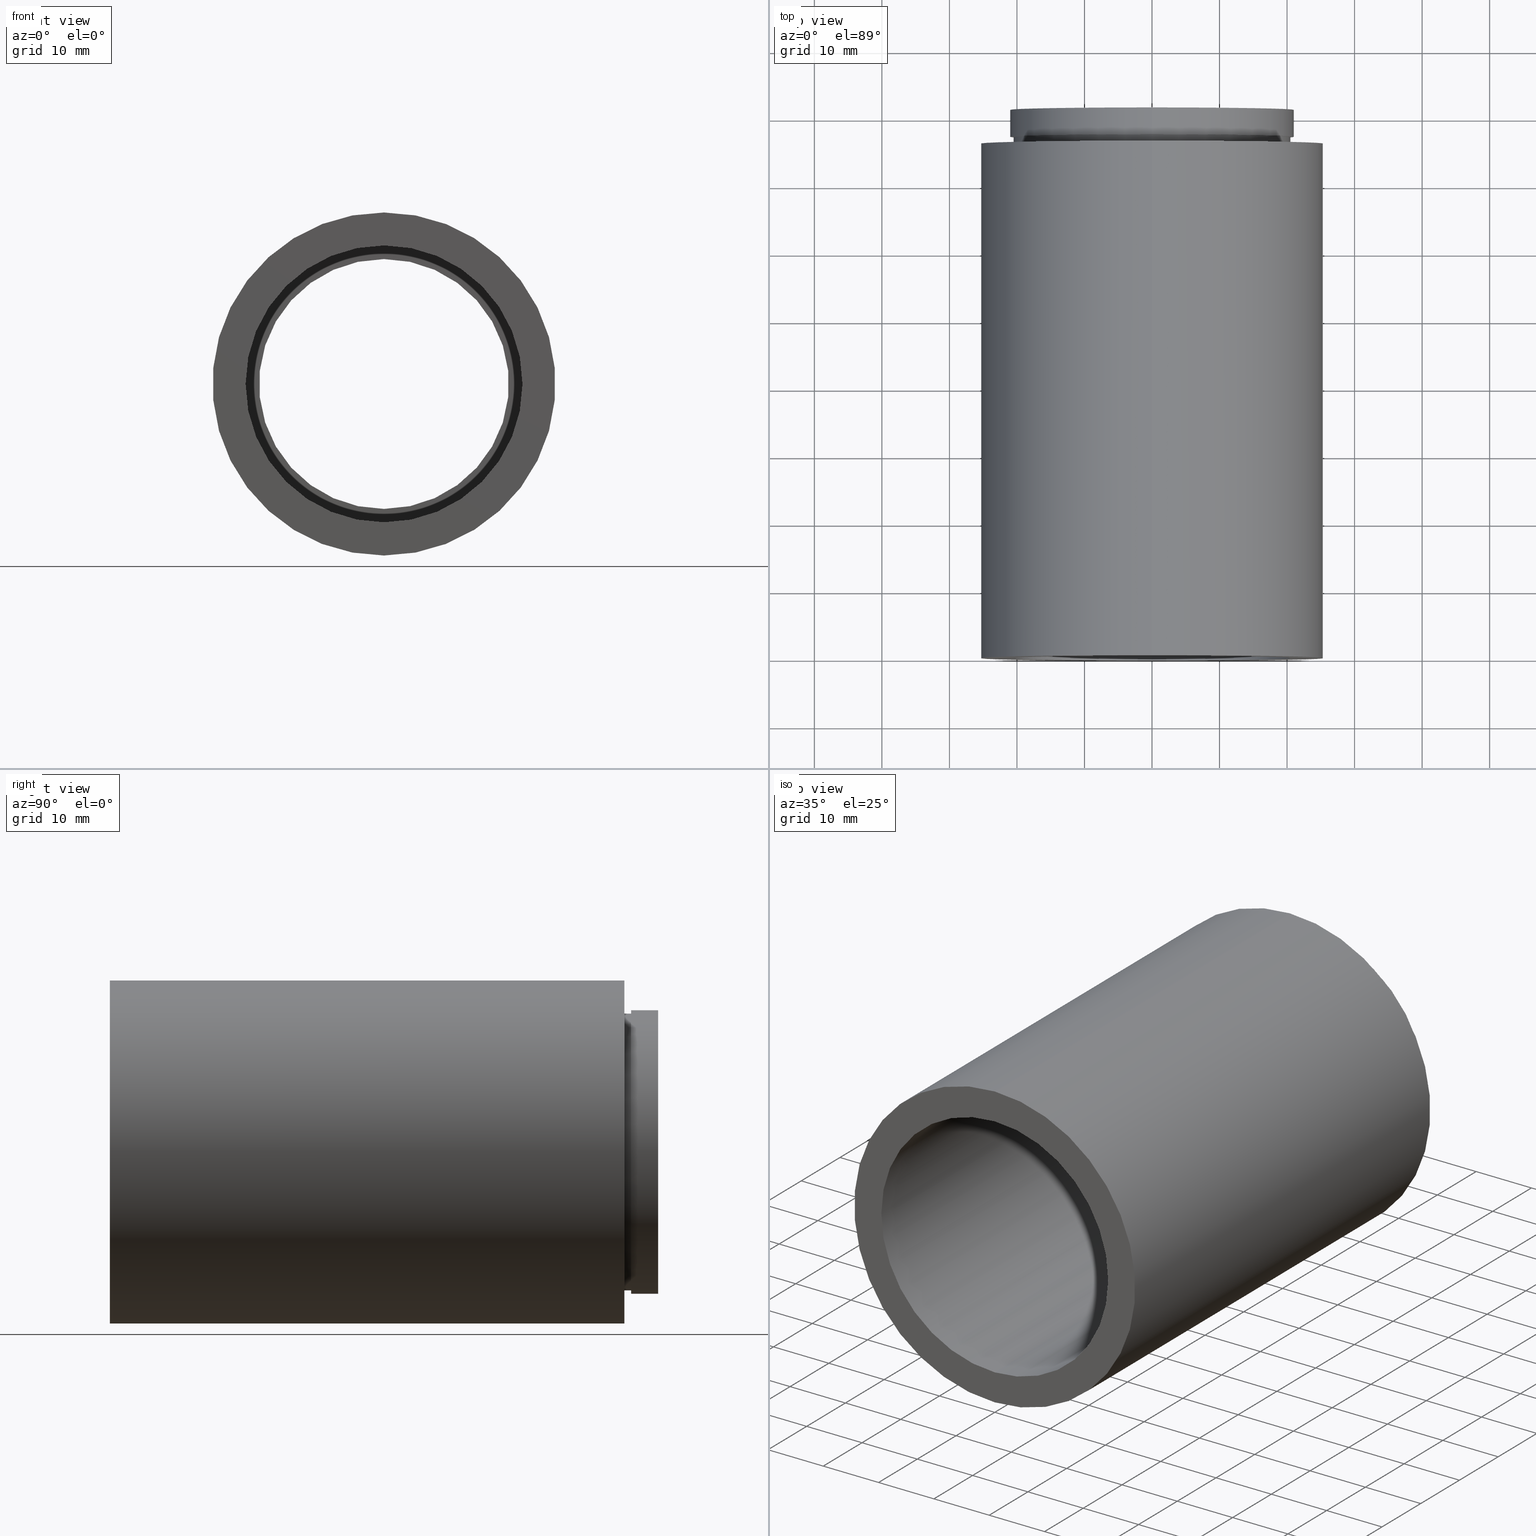
[diagram: canonical four-view strip — front | top / right | iso, engineering-drawing reading convention]
A machine part, canonical four-view strip (front | top / right | iso — engineering-drawing reading convention). The complete STEP part file that produces these views, byte-faithful:
ISO-10303-21;
HEADER;
FILE_DESCRIPTION (( 'STEP AP214' ),
    '1' );
FILE_NAME ('503022.STEP',
    '2019-09-05T03:04:28',
    ( '' ),
    ( '' ),
    'SwSTEP 2.0',
    'SolidWorks 2016',
    '' );
FILE_SCHEMA (( 'AUTOMOTIVE_DESIGN' ));
ENDSEC;

DATA;
#1 = VERTEX_POINT ( 'NONE', #105 ) ;
#2 = ORIENTED_EDGE ( 'NONE', *, *, #547, .F. ) ;
#3 = ADVANCED_BREP_SHAPE_REPRESENTATION ( '503022', ( #344, #295 ), #592 ) ;
#4 = ORIENTED_EDGE ( 'NONE', *, *, #447, .F. ) ;
#5 = ORIENTED_EDGE ( 'NONE', *, *, #209, .T. ) ;
#6 = AXIS2_PLACEMENT_3D ( 'NONE', #505, #557, #267 ) ;
#7 = FACE_BOUND ( 'NONE', #584, .T. ) ;
#8 = MECHANICAL_DESIGN_GEOMETRIC_PRESENTATION_REPRESENTATION (  '', ( #143 ), #50 ) ;
#9 = AXIS2_PLACEMENT_3D ( 'NONE', #226, #22, #221 ) ;
#10 = ORIENTED_EDGE ( 'NONE', *, *, #238, .F. ) ;
#11 = UNCERTAINTY_MEASURE_WITH_UNIT (LENGTH_MEASURE( 1.000000000000000100E-005 ), #282, 'distance_accuracy_value', 'NONE');
#12 = FACE_OUTER_BOUND ( 'NONE', #284, .T. ) ;
#13 = ORIENTED_EDGE ( 'NONE', *, *, #481, .F. ) ;
#14 = CIRCLE ( 'NONE', #539, 21.10000000000001200 ) ;
#15 = CARTESIAN_POINT ( 'NONE',  ( 2.571758278209443200E-015, 161.3761669434274500, -21.00000000000001100 ) ) ;
#16 = EDGE_CURVE ( 'NONE', #79, #46, #527, .T. ) ;
#17 = PLANE ( 'NONE',  #179 ) ;
#18 = CARTESIAN_POINT ( 'NONE',  ( 0.0000000000000000000, 81.19999999999998900, 18.50000000000001100 ) ) ;
#19 = EDGE_LOOP ( 'NONE', ( #20, #419 ) ) ;
#20 = ORIENTED_EDGE ( 'NONE', *, *, #27, .T. ) ;
#21 = CYLINDRICAL_SURFACE ( 'NONE', #337, 21.10000000000001200 ) ;
#22 = DIRECTION ( 'NONE',  ( -0.0000000000000000000, 1.000000000000000000, -0.0000000000000000000 ) ) ;
#23 = UNCERTAINTY_MEASURE_WITH_UNIT (LENGTH_MEASURE( 1.000000000000000100E-005 ), #340, 'distance_accuracy_value', 'NONE');
#24 = FILL_AREA_STYLE ('',( #175 ) ) ;
#25 = ORIENTED_EDGE ( 'NONE', *, *, #150, .F. ) ;
#26 = EDGE_LOOP ( 'NONE', ( #166, #309, #96, #129 ) ) ;
#27 = EDGE_CURVE ( 'NONE', #600, #294, #389, .T. ) ;
#28 = CARTESIAN_POINT ( 'NONE',  ( 0.0000000000000000000, 74.19999999999998900, 0.0000000000000000000 ) ) ;
#29 = PRESENTATION_STYLE_ASSIGNMENT (( #565 ) ) ;
#30 =( LENGTH_UNIT ( ) NAMED_UNIT ( * ) SI_UNIT ( .MILLI., .METRE. ) );
#31 = AXIS2_PLACEMENT_3D ( 'NONE', #210, #162, #255 ) ;
#32 = CARTESIAN_POINT ( 'NONE',  ( 2.571758278209443200E-015, 81.19999999999998900, -21.00000000000001100 ) ) ;
#33 = DIRECTION ( 'NONE',  ( 0.0000000000000000000, -0.0000000000000000000, -1.000000000000000000 ) ) ;
#34 = ADVANCED_FACE ( 'NONE', ( #619, #385 ), #433, .F. ) ;
#35 = AXIS2_PLACEMENT_3D ( 'NONE', #142, #365, #369 ) ;
#36 = ORIENTED_EDGE ( 'NONE', *, *, #199, .F. ) ;
#37 = PRESENTATION_LAYER_ASSIGNMENT (  '', '', ( #432 ) ) ;
#38 = VERTEX_POINT ( 'NONE', #540 ) ;
#39 = SURFACE_SIDE_STYLE ('',( #56 ) ) ;
#40 = CYLINDRICAL_SURFACE ( 'NONE', #502, 25.40000000000001300 ) ;
#41 = CYLINDRICAL_SURFACE ( 'NONE', #113, 18.50000000000001100 ) ;
#42 = DIRECTION ( 'NONE',  ( -0.0000000000000000000, 1.000000000000000000, -0.0000000000000000000 ) ) ;
#43 = DIRECTION ( 'NONE',  ( -0.0000000000000000000, 1.000000000000000000, -0.0000000000000000000 ) ) ;
#44 = EDGE_CURVE ( 'NONE', #489, #121, #156, .T. ) ;
#45 = CARTESIAN_POINT ( 'NONE',  ( 3.110602869834278400E-015, 161.3761669434274500, -25.40000000000001300 ) ) ;
#46 = VERTEX_POINT ( 'NONE', #346 ) ;
#47 = AXIS2_PLACEMENT_3D ( 'NONE', #438, #300, #207 ) ;
#48 = CYLINDRICAL_SURFACE ( 'NONE', #47, 21.10000000000001200 ) ;
#49 = FACE_OUTER_BOUND ( 'NONE', #19, .T. ) ;
#50 =( GEOMETRIC_REPRESENTATION_CONTEXT ( 3 ) GLOBAL_UNCERTAINTY_ASSIGNED_CONTEXT ( ( #11 ) ) GLOBAL_UNIT_ASSIGNED_CONTEXT ( ( #282, #454, #457 ) ) REPRESENTATION_CONTEXT ( 'NONE', 'WORKASPACE' ) );
#51 = DIRECTION ( 'NONE',  ( 0.0000000000000000000, 0.0000000000000000000, 1.000000000000000000 ) ) ;
#52 = ORIENTED_EDGE ( 'NONE', *, *, #185, .T. ) ;
#53 = ORIENTED_EDGE ( 'NONE', *, *, #374, .T. ) ;
#54 = LINE ( 'NONE', #317, #469 ) ;
#55 = PRESENTATION_STYLE_ASSIGNMENT (( #269 ) ) ;
#56 = SURFACE_STYLE_FILL_AREA ( #287 ) ;
#57 = CARTESIAN_POINT ( 'NONE',  ( 2.265596578422604600E-015, 81.19999999999998900, -18.50000000000001100 ) ) ;
#58 = CARTESIAN_POINT ( 'NONE',  ( 0.0000000000000000000, 77.19999999999998900, 0.0000000000000000000 ) ) ;
#59 = AXIS2_PLACEMENT_3D ( 'NONE', #354, #356, #453 ) ;
#60 = VERTEX_POINT ( 'NONE', #57 ) ;
#61 =( GEOMETRIC_REPRESENTATION_CONTEXT ( 3 ) GLOBAL_UNCERTAINTY_ASSIGNED_CONTEXT ( ( #477 ) ) GLOBAL_UNIT_ASSIGNED_CONTEXT ( ( #192, #141, #478 ) ) REPRESENTATION_CONTEXT ( 'NONE', 'WORKASPACE' ) );
#62 = ORIENTED_EDGE ( 'NONE', *, *, #523, .F. ) ;
#63 = CIRCLE ( 'NONE', #590, 18.50000000000001100 ) ;
#64 = EDGE_CURVE ( 'NONE', #121, #489, #109, .T. ) ;
#65 = CARTESIAN_POINT ( 'NONE',  ( 0.0000000000000000000, 77.19999999999998900, 21.00000000000001100 ) ) ;
#66 = DIRECTION ( 'NONE',  ( 0.0000000000000000000, 0.0000000000000000000, 1.000000000000000000 ) ) ;
#67 = ORIENTED_EDGE ( 'NONE', *, *, #256, .T. ) ;
#68 = STYLED_ITEM ( 'NONE', ( #491 ), #326 ) ;
#69 = PRESENTATION_LAYER_ASSIGNMENT (  '', '', ( #257 ) ) ;
#70 = FACE_OUTER_BOUND ( 'NONE', #496, .T. ) ;
#71 = LINE ( 'NONE', #81, #82 ) ;
#72 = LINE ( 'NONE', #112, #342 ) ;
#73 = MECHANICAL_DESIGN_GEOMETRIC_PRESENTATION_REPRESENTATION (  '', ( #432 ), #124 ) ;
#74 = EDGE_CURVE ( 'NONE', #296, #406, #475, .T. ) ;
#75 = DIRECTION ( 'NONE',  ( -0.0000000000000000000, 1.000000000000000000, 0.0000000000000000000 ) ) ;
#76 = CARTESIAN_POINT ( 'NONE',  ( 3.110602869834279200E-015, -2.775557561562891400E-014, -25.40000000000002000 ) ) ;
#77 = DIRECTION ( 'NONE',  ( 0.0000000000000000000, 0.0000000000000000000, 1.000000000000000000 ) ) ;
#78 = DIRECTION ( 'NONE',  ( 0.0000000000000000000, 0.0000000000000000000, 1.000000000000000000 ) ) ;
#79 = VERTEX_POINT ( 'NONE', #494 ) ;
#80 = FILL_AREA_STYLE_COLOUR ( '', #588 ) ;
#81 = CARTESIAN_POINT ( 'NONE',  ( 0.0000000000000000000, 161.3761669434274500, 21.00000000000001100 ) ) ;
#82 = VECTOR ( 'NONE', #613, 1000.000000000000000 ) ;
#83 = CARTESIAN_POINT ( 'NONE',  ( 0.0000000000000000000, 81.19999999999998900, 0.0000000000000000000 ) ) ;
#84 = DIRECTION ( 'NONE',  ( -0.0000000000000000000, 1.000000000000000000, -0.0000000000000000000 ) ) ;
#85 = AXIS2_PLACEMENT_3D ( 'NONE', #476, #42, #93 ) ;
#86 = CARTESIAN_POINT ( 'NONE',  ( 0.0000000000000000000, 81.19999999999998900, 21.00000000000001100 ) ) ;
#87 = CARTESIAN_POINT ( 'NONE',  ( 0.0000000000000000000, 74.19999999999998900, 18.50000000000001100 ) ) ;
#88 =( LENGTH_UNIT ( ) NAMED_UNIT ( * ) SI_UNIT ( .MILLI., .METRE. ) );
#89 = CARTESIAN_POINT ( 'NONE',  ( 2.265596578422604600E-015, 74.19999999999998900, -18.50000000000001100 ) ) ;
#90 = ORIENTED_EDGE ( 'NONE', *, *, #559, .F. ) ;
#91 = DIRECTION ( 'NONE',  ( 0.0000000000000000000, -0.0000000000000000000, -1.000000000000000000 ) ) ;
#92 = CARTESIAN_POINT ( 'NONE',  ( 2.510525938252076500E-015, 161.3761669434274500, -20.50000000000002100 ) ) ;
#93 = DIRECTION ( 'NONE',  ( 0.0000000000000000000, 0.0000000000000000000, 1.000000000000000000 ) ) ;
#94 = FILL_AREA_STYLE ('',( #479 ) ) ;
#95 = CARTESIAN_POINT ( 'NONE',  ( 0.0000000000000000000, 76.19999999999998900, 0.0000000000000000000 ) ) ;
#96 = ORIENTED_EDGE ( 'NONE', *, *, #238, .T. ) ;
#97 = MECHANICAL_DESIGN_GEOMETRIC_PRESENTATION_REPRESENTATION (  '', ( #367 ), #349 ) ;
#98 = DIRECTION ( 'NONE',  ( -0.0000000000000000000, 1.000000000000000000, -0.0000000000000000000 ) ) ;
#99 = AXIS2_PLACEMENT_3D ( 'NONE', #218, #361, #77 ) ;
#100 = FACE_OUTER_BOUND ( 'NONE', #258, .T. ) ;
#101 = CARTESIAN_POINT ( 'NONE',  ( 0.0000000000000000000, 74.19999999999998900, 0.0000000000000000000 ) ) ;
#102 =( NAMED_UNIT ( * ) SI_UNIT ( $, .STERADIAN. ) SOLID_ANGLE_UNIT ( ) );
#103 = ORIENTED_EDGE ( 'NONE', *, *, #551, .F. ) ;
#104 = PRESENTATION_LAYER_ASSIGNMENT (  '', '', ( #68 ) ) ;
#105 = CARTESIAN_POINT ( 'NONE',  ( 2.510525938252076500E-015, -2.775557561562891400E-014, -20.50000000000002100 ) ) ;
#106 = FACE_OUTER_BOUND ( 'NONE', #566, .T. ) ;
#107 = STYLED_ITEM ( 'NONE', ( #372 ), #598 ) ;
#108 = CARTESIAN_POINT ( 'NONE',  ( 0.0000000000000000000, -2.775557561562891400E-014, 0.0000000000000000000 ) ) ;
#109 = CIRCLE ( 'NONE', #164, 25.40000000000002000 ) ;
#110 = EDGE_CURVE ( 'NONE', #600, #79, #359, .T. ) ;
#111 = DIRECTION ( 'NONE',  ( -0.0000000000000000000, 1.000000000000000000, -0.0000000000000000000 ) ) ;
#112 = CARTESIAN_POINT ( 'NONE',  ( 0.0000000000000000000, 161.3761669434274500, 20.50000000000001100 ) ) ;
#113 = AXIS2_PLACEMENT_3D ( 'NONE', #596, #448, #171 ) ;
#114 = AXIS2_PLACEMENT_3D ( 'NONE', #526, #98, #567 ) ;
#115 = DIRECTION ( 'NONE',  ( 0.0000000000000000000, 0.0000000000000000000, 1.000000000000000000 ) ) ;
#116 = SURFACE_STYLE_FILL_AREA ( #174 ) ;
#117 = EDGE_CURVE ( 'NONE', #464, #198, #303, .T. ) ;
#118 =( NAMED_UNIT ( * ) SI_UNIT ( $, .STERADIAN. ) SOLID_ANGLE_UNIT ( ) );
#119 = CARTESIAN_POINT ( 'NONE',  ( 0.0000000000000000000, 76.19999999999998900, 0.0000000000000000000 ) ) ;
#120 = UNCERTAINTY_MEASURE_WITH_UNIT (LENGTH_MEASURE( 1.000000000000000100E-005 ), #403, 'distance_accuracy_value', 'NONE');
#121 = VERTEX_POINT ( 'NONE', #211 ) ;
#122 = CARTESIAN_POINT ( 'NONE',  ( 0.0000000000000000000, -2.775557561562891400E-014, 20.50000000000002100 ) ) ;
#123 = CIRCLE ( 'NONE', #467, 18.50000000000001100 ) ;
#124 =( GEOMETRIC_REPRESENTATION_CONTEXT ( 3 ) GLOBAL_UNCERTAINTY_ASSIGNED_CONTEXT ( ( #172 ) ) GLOBAL_UNIT_ASSIGNED_CONTEXT ( ( #30, #520, #413 ) ) REPRESENTATION_CONTEXT ( 'NONE', 'WORKASPACE' ) );
#125 = CARTESIAN_POINT ( 'NONE',  ( 0.0000000000000000000, 81.19999999999998900, 0.0000000000000000000 ) ) ;
#126 =( GEOMETRIC_REPRESENTATION_CONTEXT ( 3 ) GLOBAL_UNCERTAINTY_ASSIGNED_CONTEXT ( ( #236 ) ) GLOBAL_UNIT_ASSIGNED_CONTEXT ( ( #88, #418, #620 ) ) REPRESENTATION_CONTEXT ( 'NONE', 'WORKASPACE' ) );
#127 = SURFACE_SIDE_STYLE ('',( #555 ) ) ;
#128 = ADVANCED_FACE ( 'NONE', ( #451, #392 ), #251, .F. ) ;
#129 = ORIENTED_EDGE ( 'NONE', *, *, #444, .F. ) ;
#130 = ADVANCED_FACE ( 'NONE', ( #322 ), #387, .T. ) ;
#131 = ORIENTED_EDGE ( 'NONE', *, *, #484, .T. ) ;
#132 = EDGE_LOOP ( 'NONE', ( #332, #318 ) ) ;
#133 = ORIENTED_EDGE ( 'NONE', *, *, #283, .T. ) ;
#134 = SURFACE_SIDE_STYLE ('',( #311 ) ) ;
#135 = DIRECTION ( 'NONE',  ( 0.0000000000000000000, -1.000000000000000000, 0.0000000000000000000 ) ) ;
#136 = CIRCLE ( 'NONE', #59, 21.00000000000001100 ) ;
#137 = ADVANCED_FACE ( 'NONE', ( #70 ), #48, .F. ) ;
#138 = LINE ( 'NONE', #170, #580 ) ;
#139 = PRESENTATION_LAYER_ASSIGNMENT (  '', '', ( #367 ) ) ;
#140 =( GEOMETRIC_REPRESENTATION_CONTEXT ( 3 ) GLOBAL_UNCERTAINTY_ASSIGNED_CONTEXT ( ( #23 ) ) GLOBAL_UNIT_ASSIGNED_CONTEXT ( ( #340, #151, #577 ) ) REPRESENTATION_CONTEXT ( 'NONE', 'WORKASPACE' ) );
#141 =( NAMED_UNIT ( * ) PLANE_ANGLE_UNIT ( ) SI_UNIT ( $, .RADIAN. ) );
#142 = CARTESIAN_POINT ( 'NONE',  ( 0.0000000000000000000, 161.3761669434274500, 0.0000000000000000000 ) ) ;
#143 = STYLED_ITEM ( 'NONE', ( #29 ), #333 ) ;
#144 = ORIENTED_EDGE ( 'NONE', *, *, #444, .T. ) ;
#145 = CARTESIAN_POINT ( 'NONE',  ( 0.0000000000000000000, 77.19999999999998900, 0.0000000000000000000 ) ) ;
#146 = EDGE_CURVE ( 'NONE', #1, #490, #158, .T. ) ;
#147 = ORIENTED_EDGE ( 'NONE', *, *, #117, .F. ) ;
#148 = CYLINDRICAL_SURFACE ( 'NONE', #85, 21.00000000000001100 ) ;
#149 = CIRCLE ( 'NONE', #442, 20.50000000000002100 ) ;
#150 = EDGE_CURVE ( 'NONE', #610, #611, #63, .T. ) ;
#151 =( NAMED_UNIT ( * ) PLANE_ANGLE_UNIT ( ) SI_UNIT ( $, .RADIAN. ) );
#152 = APPLICATION_CONTEXT ( 'automotive_design' ) ;
#153 = ORIENTED_EDGE ( 'NONE', *, *, #27, .F. ) ;
#154 = ORIENTED_EDGE ( 'NONE', *, *, #146, .F. ) ;
#155 = AXIS2_PLACEMENT_3D ( 'NONE', #169, #316, #407 ) ;
#156 = CIRCLE ( 'NONE', #532, 25.40000000000002000 ) ;
#157 = EDGE_LOOP ( 'NONE', ( #154, #263, #497, #90 ) ) ;
#158 = CIRCLE ( 'NONE', #595, 20.50000000000002100 ) ;
#159 = CARTESIAN_POINT ( 'NONE',  ( 0.0000000000000000000, -2.775557561562891400E-014, 0.0000000000000000000 ) ) ;
#160 = CIRCLE ( 'NONE', #313, 20.50000000000001100 ) ;
#161 = FACE_OUTER_BOUND ( 'NONE', #26, .T. ) ;
#162 = DIRECTION ( 'NONE',  ( -0.0000000000000000000, 1.000000000000000000, 0.0000000000000000000 ) ) ;
#163 = DIRECTION ( 'NONE',  ( 0.0000000000000000000, 0.0000000000000000000, 1.000000000000000000 ) ) ;
#164 = AXIS2_PLACEMENT_3D ( 'NONE', #108, #440, #398 ) ;
#165 = MECHANICAL_DESIGN_GEOMETRIC_PRESENTATION_REPRESENTATION (  '', ( #107 ), #549 ) ;
#166 = ORIENTED_EDGE ( 'NONE', *, *, #534, .F. ) ;
#167 = EDGE_CURVE ( 'NONE', #46, #79, #14, .T. ) ;
#168 = DIRECTION ( 'NONE',  ( -0.0000000000000000000, 1.000000000000000000, -0.0000000000000000000 ) ) ;
#169 = CARTESIAN_POINT ( 'NONE',  ( 0.0000000000000000000, 81.19999999999998900, 0.0000000000000000000 ) ) ;
#170 = CARTESIAN_POINT ( 'NONE',  ( 0.0000000000000000000, 161.3761669434274500, 25.40000000000001300 ) ) ;
#171 = DIRECTION ( 'NONE',  ( 0.0000000000000000000, 0.0000000000000000000, 1.000000000000000000 ) ) ;
#172 = UNCERTAINTY_MEASURE_WITH_UNIT (LENGTH_MEASURE( 1.000000000000000100E-005 ), #30, 'distance_accuracy_value', 'NONE');
#173 = AXIS2_PLACEMENT_3D ( 'NONE', #308, #111, #163 ) ;
#174 = FILL_AREA_STYLE ('',( #552 ) ) ;
#175 = FILL_AREA_STYLE_COLOUR ( '', #512 ) ;
#176 = EDGE_LOOP ( 'NONE', ( #450, #506, #338, #449 ) ) ;
#177 = CARTESIAN_POINT ( 'NONE',  ( 2.584004746200916600E-015, 73.19999999999998900, -21.10000000000001200 ) ) ;
#178 = ORIENTED_EDGE ( 'NONE', *, *, #484, .F. ) ;
#179 = AXIS2_PLACEMENT_3D ( 'NONE', #358, #75, #115 ) ;
#180 = PRESENTATION_STYLE_ASSIGNMENT (( #573 ) ) ;
#181 = CARTESIAN_POINT ( 'NONE',  ( 0.0000000000000000000, 161.3761669434274500, 20.50000000000002100 ) ) ;
#182 =( NAMED_UNIT ( * ) PLANE_ANGLE_UNIT ( ) SI_UNIT ( $, .RADIAN. ) );
#183 = DIRECTION ( 'NONE',  ( -0.0000000000000000000, 1.000000000000000000, -0.0000000000000000000 ) ) ;
#184 = DIRECTION ( 'NONE',  ( 0.0000000000000000000, 0.0000000000000000000, 1.000000000000000000 ) ) ;
#185 = EDGE_CURVE ( 'NONE', #406, #296, #136, .T. ) ;
#186 = EDGE_LOOP ( 'NONE', ( #397, #391, #601, #103 ) ) ;
#187 = DIRECTION ( 'NONE',  ( -0.0000000000000000000, 1.000000000000000000, -0.0000000000000000000 ) ) ;
#188 = CYLINDRICAL_SURFACE ( 'NONE', #307, 20.50000000000002100 ) ;
#189 = DIRECTION ( 'NONE',  ( 0.0000000000000000000, 0.0000000000000000000, 1.000000000000000000 ) ) ;
#190 = ADVANCED_FACE ( 'NONE', ( #509 ), #41, .F. ) ;
#191 = UNCERTAINTY_MEASURE_WITH_UNIT (LENGTH_MEASURE( 1.000000000000000100E-005 ), #473, 'distance_accuracy_value', 'NONE');
#192 =( LENGTH_UNIT ( ) NAMED_UNIT ( * ) SI_UNIT ( .MILLI., .METRE. ) );
#193 = DIRECTION ( 'NONE',  ( 1.000000000000000000, 0.0000000000000000000, 0.0000000000000000000 ) ) ;
#194 = ORIENTED_EDGE ( 'NONE', *, *, #167, .T. ) ;
#195 = CARTESIAN_POINT ( 'NONE',  ( 2.584004746200916600E-015, 161.3761669434274500, -21.10000000000001200 ) ) ;
#196 = SURFACE_SIDE_STYLE ('',( #262 ) ) ;
#197 = ORIENTED_EDGE ( 'NONE', *, *, #460, .F. ) ;
#198 = VERTEX_POINT ( 'NONE', #265 ) ;
#199 = EDGE_CURVE ( 'NONE', #294, #600, #220, .T. ) ;
#200 = VECTOR ( 'NONE', #544, 1000.000000000000000 ) ;
#201 = SHAPE_DEFINITION_REPRESENTATION ( #474, #3 ) ;
#202 = VERTEX_POINT ( 'NONE', #593 ) ;
#203 = DIRECTION ( 'NONE',  ( -0.0000000000000000000, 1.000000000000000000, -0.0000000000000000000 ) ) ;
#204 = VECTOR ( 'NONE', #524, 1000.000000000000000 ) ;
#205 = PRESENTATION_LAYER_ASSIGNMENT (  '', '', ( #143 ) ) ;
#206 = CARTESIAN_POINT ( 'NONE',  ( 0.0000000000000000000, 161.3761669434274500, 21.10000000000001200 ) ) ;
#207 = DIRECTION ( 'NONE',  ( 0.0000000000000000000, 0.0000000000000000000, 1.000000000000000000 ) ) ;
#208 = ORIENTED_EDGE ( 'NONE', *, *, #185, .F. ) ;
#209 = EDGE_CURVE ( 'NONE', #301, #370, #443, .T. ) ;
#210 = CARTESIAN_POINT ( 'NONE',  ( 21.00000000000001100, 77.19999999999998900, 0.0000000000000000000 ) ) ;
#211 = CARTESIAN_POINT ( 'NONE',  ( 0.0000000000000000000, -2.775557561562891400E-014, 25.40000000000002000 ) ) ;
#212 = SURFACE_STYLE_FILL_AREA ( #24 ) ;
#213 = AXIS2_PLACEMENT_3D ( 'NONE', #461, #612, #325 ) ;
#214 = DIRECTION ( 'NONE',  ( 0.0000000000000000000, 0.0000000000000000000, 1.000000000000000000 ) ) ;
#215 = EDGE_CURVE ( 'NONE', #38, #608, #323, .T. ) ;
#216 = CARTESIAN_POINT ( 'NONE',  ( 0.0000000000000000000, 74.19999999999998900, 0.0000000000000000000 ) ) ;
#217 = CARTESIAN_POINT ( 'NONE',  ( 0.0000000000000000000, 74.19999999999998900, 0.0000000000000000000 ) ) ;
#218 = CARTESIAN_POINT ( 'NONE',  ( 0.0000000000000000000, 161.3761669434274500, 0.0000000000000000000 ) ) ;
#219 = VERTEX_POINT ( 'NONE', #18 ) ;
#220 = CIRCLE ( 'NONE', #6, 21.10000000000001200 ) ;
#221 = DIRECTION ( 'NONE',  ( 0.0000000000000000000, 0.0000000000000000000, 1.000000000000000000 ) ) ;
#222 = CARTESIAN_POINT ( 'NONE',  ( 0.0000000000000000000, 76.19999999999998900, 0.0000000000000000000 ) ) ;
#223 = CIRCLE ( 'NONE', #213, 20.50000000000002100 ) ;
#224 = FILL_AREA_STYLE ('',( #510 ) ) ;
#225 = FILL_AREA_STYLE ('',( #421 ) ) ;
#226 = CARTESIAN_POINT ( 'NONE',  ( 0.0000000000000000000, 161.3761669434274500, 0.0000000000000000000 ) ) ;
#227 = DIRECTION ( 'NONE',  ( -0.0000000000000000000, 1.000000000000000000, -0.0000000000000000000 ) ) ;
#228 = EDGE_LOOP ( 'NONE', ( #133, #575 ) ) ;
#229 = ADVANCED_FACE ( 'NONE', ( #239, #585 ), #17, .F. ) ;
#230 = FILL_AREA_STYLE ('',( #80 ) ) ;
#231 =( NAMED_UNIT ( * ) SI_UNIT ( $, .STERADIAN. ) SOLID_ANGLE_UNIT ( ) );
#232 = ORIENTED_EDGE ( 'NONE', *, *, #44, .T. ) ;
#233 = FACE_OUTER_BOUND ( 'NONE', #414, .T. ) ;
#234 = CARTESIAN_POINT ( 'NONE',  ( 20.50000000000001100, 76.19999999999998900, 0.0000000000000000000 ) ) ;
#235 = SURFACE_SIDE_STYLE ('',( #570 ) ) ;
#236 = UNCERTAINTY_MEASURE_WITH_UNIT (LENGTH_MEASURE( 1.000000000000000100E-005 ), #88, 'distance_accuracy_value', 'NONE');
#237 = DIRECTION ( 'NONE',  ( -0.0000000000000000000, 1.000000000000000000, -0.0000000000000000000 ) ) ;
#238 = EDGE_CURVE ( 'NONE', #60, #219, #587, .T. ) ;
#239 = FACE_OUTER_BOUND ( 'NONE', #399, .T. ) ;
#240 = CYLINDRICAL_SURFACE ( 'NONE', #99, 20.50000000000002100 ) ;
#241 = DIRECTION ( 'NONE',  ( 0.0000000000000000000, -1.000000000000000000, 0.0000000000000000000 ) ) ;
#242 = AXIS2_PLACEMENT_3D ( 'NONE', #83, #410, #513 ) ;
#243 = ORIENTED_EDGE ( 'NONE', *, *, #396, .F. ) ;
#244 = ORIENTED_EDGE ( 'NONE', *, *, #74, .T. ) ;
#245 = PRODUCT_DEFINITION_CONTEXT ( 'detailed design', #379, 'design' ) ;
#246 = ORIENTED_EDGE ( 'NONE', *, *, #481, .T. ) ;
#247 = STYLED_ITEM ( 'NONE', ( #180 ), #422 ) ;
#248 = VECTOR ( 'NONE', #536, 1000.000000000000000 ) ;
#249 = DIRECTION ( 'NONE',  ( 0.0000000000000000000, 0.0000000000000000000, 1.000000000000000000 ) ) ;
#250 = DIRECTION ( 'NONE',  ( 0.0000000000000000000, 0.0000000000000000000, 1.000000000000000000 ) ) ;
#251 = PLANE ( 'NONE',  #31 ) ;
#252 = ORIENTED_EDGE ( 'NONE', *, *, #44, .F. ) ;
#253 = DIRECTION ( 'NONE',  ( 0.0000000000000000000, 0.0000000000000000000, 1.000000000000000000 ) ) ;
#254 = UNCERTAINTY_MEASURE_WITH_UNIT (LENGTH_MEASURE( 1.000000000000000100E-005 ), #609, 'distance_accuracy_value', 'NONE');
#255 = DIRECTION ( 'NONE',  ( 0.0000000000000000000, 0.0000000000000000000, 1.000000000000000000 ) ) ;
#256 = EDGE_CURVE ( 'NONE', #38, #202, #72, .T. ) ;
#257 = STYLED_ITEM ( 'NONE', ( #376 ), #3 ) ;
#258 = EDGE_LOOP ( 'NONE', ( #36, #517, #194, #507 ) ) ;
#259 = EDGE_LOOP ( 'NONE', ( #386, #246 ) ) ;
#260 = CARTESIAN_POINT ( 'NONE',  ( 0.0000000000000000000, 81.19999999999998900, 0.0000000000000000000 ) ) ;
#261 = ORIENTED_EDGE ( 'NONE', *, *, #523, .T. ) ;
#262 = SURFACE_STYLE_FILL_AREA ( #94 ) ;
#263 = ORIENTED_EDGE ( 'NONE', *, *, #562, .T. ) ;
#264 = COLOUR_RGB ( '',1.000000000000000000, 1.000000000000000000, 1.000000000000000000 ) ;
#265 = CARTESIAN_POINT ( 'NONE',  ( 2.510525938252076500E-015, 73.19999999999998900, -20.50000000000002100 ) ) ;
#266 = CYLINDRICAL_SURFACE ( 'NONE', #482, 20.50000000000001100 ) ;
#267 = DIRECTION ( 'NONE',  ( 0.0000000000000000000, 0.0000000000000000000, 1.000000000000000000 ) ) ;
#268 =( NAMED_UNIT ( * ) PLANE_ANGLE_UNIT ( ) SI_UNIT ( $, .RADIAN. ) );
#269 = SURFACE_STYLE_USAGE ( .BOTH. , #599 ) ;
#270 = DIRECTION ( 'NONE',  ( -0.0000000000000000000, 1.000000000000000000, -0.0000000000000000000 ) ) ;
#271 = FACE_OUTER_BOUND ( 'NONE', #431, .T. ) ;
#272 = SURFACE_STYLE_FILL_AREA ( #230 ) ;
#273 = DIRECTION ( 'NONE',  ( -0.0000000000000000000, 1.000000000000000000, -0.0000000000000000000 ) ) ;
#274 = SURFACE_STYLE_USAGE ( .BOTH. , #134 ) ;
#275 = CARTESIAN_POINT ( 'NONE',  ( 0.0000000000000000000, 161.3761669434274500, 0.0000000000000000000 ) ) ;
#276 = EDGE_LOOP ( 'NONE', ( #244, #405, #537, #320 ) ) ;
#277 = ORIENTED_EDGE ( 'NONE', *, *, #256, .F. ) ;
#278 = MECHANICAL_DESIGN_GEOMETRIC_PRESENTATION_REPRESENTATION (  '', ( #68 ), #401 ) ;
#279 = DIRECTION ( 'NONE',  ( -0.0000000000000000000, 1.000000000000000000, -0.0000000000000000000 ) ) ;
#280 = SURFACE_STYLE_USAGE ( .BOTH. , #235 ) ;
#281 = MECHANICAL_DESIGN_GEOMETRIC_PRESENTATION_REPRESENTATION (  '', ( #247 ), #126 ) ;
#282 =( LENGTH_UNIT ( ) NAMED_UNIT ( * ) SI_UNIT ( .MILLI., .METRE. ) );
#283 = EDGE_CURVE ( 'NONE', #490, #1, #149, .T. ) ;
#284 = EDGE_LOOP ( 'NONE', ( #375, #52, #384, #430 ) ) ;
#285 = ORIENTED_EDGE ( 'NONE', *, *, #64, .F. ) ;
#286 = FACE_BOUND ( 'NONE', #455, .T. ) ;
#287 = FILL_AREA_STYLE ('',( #472 ) ) ;
#288 = CARTESIAN_POINT ( 'NONE',  ( 18.50000000000001100, 81.19999999999998900, 0.0000000000000000000 ) ) ;
#289 = AXIS2_PLACEMENT_3D ( 'NONE', #306, #203, #249 ) ;
#290 = CARTESIAN_POINT ( 'NONE',  ( 2.510525938252075300E-015, 77.19999999999998900, -20.50000000000001100 ) ) ;
#291 = APPLICATION_PROTOCOL_DEFINITION ( 'draft international standard', 'automotive_design', 1998, #152 ) ;
#292 = EDGE_CURVE ( 'NONE', #198, #464, #223, .T. ) ;
#293 = ORIENTED_EDGE ( 'NONE', *, *, #16, .F. ) ;
#294 = VERTEX_POINT ( 'NONE', #177 ) ;
#295 = AXIS2_PLACEMENT_3D ( 'NONE', #521, #336, #193 ) ;
#296 = VERTEX_POINT ( 'NONE', #65 ) ;
#297 = VERTEX_POINT ( 'NONE', #330 ) ;
#298 = FACE_OUTER_BOUND ( 'NONE', #157, .T. ) ;
#299 = ORIENTED_EDGE ( 'NONE', *, *, #551, .T. ) ;
#300 = DIRECTION ( 'NONE',  ( -0.0000000000000000000, 1.000000000000000000, -0.0000000000000000000 ) ) ;
#301 = VERTEX_POINT ( 'NONE', #32 ) ;
#302 = AXIS2_PLACEMENT_3D ( 'NONE', #470, #241, #339 ) ;
#303 = CIRCLE ( 'NONE', #173, 20.50000000000002100 ) ;
#304 = LINE ( 'NONE', #616, #248 ) ;
#305 = CIRCLE ( 'NONE', #242, 21.00000000000001100 ) ;
#306 = CARTESIAN_POINT ( 'NONE',  ( 0.0000000000000000000, 161.3761669434274500, 0.0000000000000000000 ) ) ;
#307 = AXIS2_PLACEMENT_3D ( 'NONE', #275, #273, #319 ) ;
#308 = CARTESIAN_POINT ( 'NONE',  ( 0.0000000000000000000, 73.19999999999998900, 0.0000000000000000000 ) ) ;
#309 = ORIENTED_EDGE ( 'NONE', *, *, #547, .T. ) ;
#310 = EDGE_LOOP ( 'NONE', ( #499, #53, #67, #13 ) ) ;
#311 = SURFACE_STYLE_FILL_AREA ( #224 ) ;
#312 = DIRECTION ( 'NONE',  ( 0.0000000000000000000, 0.0000000000000000000, 1.000000000000000000 ) ) ;
#313 = AXIS2_PLACEMENT_3D ( 'NONE', #145, #345, #253 ) ;
#314 = EDGE_LOOP ( 'NONE', ( #538, #436, #243, #277 ) ) ;
#315 = CIRCLE ( 'NONE', #114, 20.50000000000001100 ) ;
#316 = DIRECTION ( 'NONE',  ( -0.0000000000000000000, 1.000000000000000000, -0.0000000000000000000 ) ) ;
#317 = CARTESIAN_POINT ( 'NONE',  ( 2.265596578422604600E-015, 161.3761669434274500, -18.50000000000001100 ) ) ;
#318 = ORIENTED_EDGE ( 'NONE', *, *, #534, .T. ) ;
#319 = DIRECTION ( 'NONE',  ( 0.0000000000000000000, 0.0000000000000000000, 1.000000000000000000 ) ) ;
#320 = ORIENTED_EDGE ( 'NONE', *, *, #597, .F. ) ;
#321 = EDGE_CURVE ( 'NONE', #370, #301, #305, .T. ) ;
#322 = FACE_OUTER_BOUND ( 'NONE', #314, .T. ) ;
#323 = CIRCLE ( 'NONE', #382, 20.50000000000001100 ) ;
#324 = PRODUCT_RELATED_PRODUCT_CATEGORY ( 'part', '', ( #348 ) ) ;
#325 = DIRECTION ( 'NONE',  ( 0.0000000000000000000, 0.0000000000000000000, 1.000000000000000000 ) ) ;
#326 = ADVANCED_FACE ( 'NONE', ( #161 ), #591, .F. ) ;
#327 = DIRECTION ( 'NONE',  ( 0.0000000000000000000, 0.0000000000000000000, 1.000000000000000000 ) ) ;
#328 = ADVANCED_FACE ( 'NONE', ( #298 ), #188, .F. ) ;
#329 = ADVANCED_FACE ( 'NONE', ( #100 ), #21, .F. ) ;
#330 = CARTESIAN_POINT ( 'NONE',  ( 3.110602869834278000E-015, 76.19999999999998900, -25.40000000000000900 ) ) ;
#331 = CARTESIAN_POINT ( 'NONE',  ( 0.0000000000000000000, 73.19999999999998900, 21.10000000000001200 ) ) ;
#332 = ORIENTED_EDGE ( 'NONE', *, *, #150, .T. ) ;
#333 = ADVANCED_FACE ( 'NONE', ( #452 ), #240, .F. ) ;
#334 = FACE_OUTER_BOUND ( 'NONE', #310, .T. ) ;
#335 = PRODUCT_DEFINITION ( 'δ֪', '', #519, #245 ) ;
#336 = DIRECTION ( 'NONE',  ( 0.0000000000000000000, 0.0000000000000000000, 1.000000000000000000 ) ) ;
#337 = AXIS2_PLACEMENT_3D ( 'NONE', #415, #279, #327 ) ;
#338 = ORIENTED_EDGE ( 'NONE', *, *, #559, .T. ) ;
#339 = DIRECTION ( 'NONE',  ( 0.0000000000000000000, -0.0000000000000000000, -1.000000000000000000 ) ) ;
#340 =( LENGTH_UNIT ( ) NAMED_UNIT ( * ) SI_UNIT ( .MILLI., .METRE. ) );
#341 = COLOUR_RGB ( '',1.000000000000000000, 1.000000000000000000, 1.000000000000000000 ) ;
#342 = VECTOR ( 'NONE', #168, 1000.000000000000000 ) ;
#343 = AXIS2_PLACEMENT_3D ( 'NONE', #222, #408, #78 ) ;
#344 = MANIFOLD_SOLID_BREP ( '��ת1', #545 ) ;
#345 = DIRECTION ( 'NONE',  ( -0.0000000000000000000, 1.000000000000000000, -0.0000000000000000000 ) ) ;
#346 = CARTESIAN_POINT ( 'NONE',  ( 2.584004746200916600E-015, 74.19999999999998900, -21.10000000000001200 ) ) ;
#347 = ORIENTED_EDGE ( 'NONE', *, *, #215, .F. ) ;
#348 = PRODUCT ( '503022', '503022', '', ( #621 ) ) ;
#349 =( GEOMETRIC_REPRESENTATION_CONTEXT ( 3 ) GLOBAL_UNCERTAINTY_ASSIGNED_CONTEXT ( ( #120 ) ) GLOBAL_UNIT_ASSIGNED_CONTEXT ( ( #403, #268, #118 ) ) REPRESENTATION_CONTEXT ( 'NONE', 'WORKASPACE' ) );
#350 = CIRCLE ( 'NONE', #456, 25.40000000000000900 ) ;
#351 = DIRECTION ( 'NONE',  ( 0.0000000000000000000, 0.0000000000000000000, 1.000000000000000000 ) ) ;
#352 = DIRECTION ( 'NONE',  ( -0.0000000000000000000, 1.000000000000000000, -0.0000000000000000000 ) ) ;
#353 = ORIENTED_EDGE ( 'NONE', *, *, #394, .T. ) ;
#354 = CARTESIAN_POINT ( 'NONE',  ( 0.0000000000000000000, 77.19999999999998900, 0.0000000000000000000 ) ) ;
#355 = DIRECTION ( 'NONE',  ( -0.0000000000000000000, 1.000000000000000000, -0.0000000000000000000 ) ) ;
#356 = DIRECTION ( 'NONE',  ( -0.0000000000000000000, 1.000000000000000000, -0.0000000000000000000 ) ) ;
#357 = ADVANCED_FACE ( 'NONE', ( #604, #49 ), #530, .F. ) ;
#358 = CARTESIAN_POINT ( 'NONE',  ( 21.10000000000001200, 74.19999999999998900, 0.0000000000000000000 ) ) ;
#359 = LINE ( 'NONE', #206, #200 ) ;
#360 = EDGE_LOOP ( 'NONE', ( #423, #208 ) ) ;
#361 = DIRECTION ( 'NONE',  ( -0.0000000000000000000, 1.000000000000000000, -0.0000000000000000000 ) ) ;
#362 = CARTESIAN_POINT ( 'NONE',  ( 0.0000000000000000000, 161.3761669434274500, 0.0000000000000000000 ) ) ;
#363 = CYLINDRICAL_SURFACE ( 'NONE', #434, 25.40000000000001300 ) ;
#364 = SURFACE_SIDE_STYLE ('',( #212 ) ) ;
#365 = DIRECTION ( 'NONE',  ( -0.0000000000000000000, 1.000000000000000000, -0.0000000000000000000 ) ) ;
#366 = ORIENTED_EDGE ( 'NONE', *, *, #167, .F. ) ;
#367 = STYLED_ITEM ( 'NONE', ( #55 ), #190 ) ;
#368 = SURFACE_SIDE_STYLE ('',( #272 ) ) ;
#369 = DIRECTION ( 'NONE',  ( 0.0000000000000000000, 0.0000000000000000000, 1.000000000000000000 ) ) ;
#370 = VERTEX_POINT ( 'NONE', #86 ) ;
#371 = STYLED_ITEM ( 'NONE', ( #445 ), #344 ) ;
#372 = PRESENTATION_STYLE_ASSIGNMENT (( #280 ) ) ;
#373 = FILL_AREA_STYLE_COLOUR ( '', #622 ) ;
#374 = EDGE_CURVE ( 'NONE', #608, #38, #495, .T. ) ;
#375 = ORIENTED_EDGE ( 'NONE', *, *, #508, .F. ) ;
#376 = PRESENTATION_STYLE_ASSIGNMENT (( #381 ) ) ;
#377 = VERTEX_POINT ( 'NONE', #290 ) ;
#378 = DIRECTION ( 'NONE',  ( -0.0000000000000000000, 1.000000000000000000, -0.0000000000000000000 ) ) ;
#379 = APPLICATION_CONTEXT ( 'automotive_design' ) ;
#380 = DIRECTION ( 'NONE',  ( 0.0000000000000000000, -1.000000000000000000, 0.0000000000000000000 ) ) ;
#381 = SURFACE_STYLE_USAGE ( .BOTH. , #196 ) ;
#382 = AXIS2_PLACEMENT_3D ( 'NONE', #119, #503, #400 ) ;
#383 = CARTESIAN_POINT ( 'NONE',  ( 0.0000000000000000000, 73.19999999999998900, 0.0000000000000000000 ) ) ;
#384 = ORIENTED_EDGE ( 'NONE', *, *, #597, .T. ) ;
#385 = FACE_BOUND ( 'NONE', #228, .T. ) ;
#386 = ORIENTED_EDGE ( 'NONE', *, *, #396, .T. ) ;
#387 = CYLINDRICAL_SURFACE ( 'NONE', #289, 20.50000000000001100 ) ;
#388 = CARTESIAN_POINT ( 'NONE',  ( 25.40000000000002000, -1.454715626710879400E-014, 0.0000000000000000000 ) ) ;
#389 = CIRCLE ( 'NONE', #579, 21.10000000000001200 ) ;
#390 = DIRECTION ( 'NONE',  ( -0.0000000000000000000, 1.000000000000000000, 0.0000000000000000000 ) ) ;
#391 = ORIENTED_EDGE ( 'NONE', *, *, #447, .T. ) ;
#392 = FACE_BOUND ( 'NONE', #259, .T. ) ;
#393 = CIRCLE ( 'NONE', #343, 25.40000000000000900 ) ;
#394 = EDGE_CURVE ( 'NONE', #528, #297, #350, .T. ) ;
#395 = DIRECTION ( 'NONE',  ( -0.0000000000000000000, 1.000000000000000000, -0.0000000000000000000 ) ) ;
#396 = EDGE_CURVE ( 'NONE', #202, #377, #315, .T. ) ;
#397 = ORIENTED_EDGE ( 'NONE', *, *, #64, .T. ) ;
#398 = DIRECTION ( 'NONE',  ( 0.0000000000000000000, 0.0000000000000000000, 1.000000000000000000 ) ) ;
#399 = EDGE_LOOP ( 'NONE', ( #293, #366 ) ) ;
#400 = DIRECTION ( 'NONE',  ( 0.0000000000000000000, 0.0000000000000000000, 1.000000000000000000 ) ) ;
#401 =( GEOMETRIC_REPRESENTATION_CONTEXT ( 3 ) GLOBAL_UNCERTAINTY_ASSIGNED_CONTEXT ( ( #582 ) ) GLOBAL_UNIT_ASSIGNED_CONTEXT ( ( #602, #182, #560 ) ) REPRESENTATION_CONTEXT ( 'NONE', 'WORKASPACE' ) );
#402 = AXIS2_PLACEMENT_3D ( 'NONE', #125, #458, #561 ) ;
#403 =( LENGTH_UNIT ( ) NAMED_UNIT ( * ) SI_UNIT ( .MILLI., .METRE. ) );
#404 = CARTESIAN_POINT ( 'NONE',  ( 0.0000000000000000000, 76.19999999999998900, 25.40000000000000900 ) ) ;
#405 = ORIENTED_EDGE ( 'NONE', *, *, #508, .T. ) ;
#406 = VERTEX_POINT ( 'NONE', #574 ) ;
#407 = DIRECTION ( 'NONE',  ( 0.0000000000000000000, 0.0000000000000000000, 1.000000000000000000 ) ) ;
#408 = DIRECTION ( 'NONE',  ( -0.0000000000000000000, 1.000000000000000000, -0.0000000000000000000 ) ) ;
#409 = LINE ( 'NONE', #45, #603 ) ;
#410 = DIRECTION ( 'NONE',  ( -0.0000000000000000000, 1.000000000000000000, -0.0000000000000000000 ) ) ;
#411 = DIRECTION ( 'NONE',  ( -0.0000000000000000000, 1.000000000000000000, -0.0000000000000000000 ) ) ;
#412 = AXIS2_PLACEMENT_3D ( 'NONE', #260, #589, #312 ) ;
#413 =( NAMED_UNIT ( * ) SI_UNIT ( $, .STERADIAN. ) SOLID_ANGLE_UNIT ( ) );
#414 = EDGE_LOOP ( 'NONE', ( #353, #131 ) ) ;
#415 = CARTESIAN_POINT ( 'NONE',  ( 0.0000000000000000000, 161.3761669434274500, 0.0000000000000000000 ) ) ;
#416 = DIRECTION ( 'NONE',  ( 0.0000000000000000000, 0.0000000000000000000, 1.000000000000000000 ) ) ;
#417 = FACE_OUTER_BOUND ( 'NONE', #276, .T. ) ;
#418 =( NAMED_UNIT ( * ) PLANE_ANGLE_UNIT ( ) SI_UNIT ( $, .RADIAN. ) );
#419 = ORIENTED_EDGE ( 'NONE', *, *, #199, .T. ) ;
#420 = CARTESIAN_POINT ( 'NONE',  ( 0.0000000000000000000, 161.3761669434274500, 0.0000000000000000000 ) ) ;
#421 = FILL_AREA_STYLE_COLOUR ( '', #511 ) ;
#422 = ADVANCED_FACE ( 'NONE', ( #417 ), #148, .T. ) ;
#423 = ORIENTED_EDGE ( 'NONE', *, *, #74, .F. ) ;
#424 = VECTOR ( 'NONE', #237, 1000.000000000000000 ) ;
#425 = PLANE ( 'NONE',  #541 ) ;
#426 =( NAMED_UNIT ( * ) PLANE_ANGLE_UNIT ( ) SI_UNIT ( $, .RADIAN. ) );
#427 = SURFACE_STYLE_USAGE ( .BOTH. , #364 ) ;
#428 = DIRECTION ( 'NONE',  ( -0.0000000000000000000, 1.000000000000000000, -0.0000000000000000000 ) ) ;
#429 = CARTESIAN_POINT ( 'NONE',  ( 2.510525938252075300E-015, 161.3761669434274500, -20.50000000000001100 ) ) ;
#430 = ORIENTED_EDGE ( 'NONE', *, *, #209, .F. ) ;
#431 = EDGE_LOOP ( 'NONE', ( #4, #232, #299, #178 ) ) ;
#432 = STYLED_ITEM ( 'NONE', ( #485 ), #328 ) ;
#433 = PLANE ( 'NONE',  #606 ) ;
#434 = AXIS2_PLACEMENT_3D ( 'NONE', #362, #411, #514 ) ;
#435 = DIRECTION ( 'NONE',  ( -0.0000000000000000000, 1.000000000000000000, -0.0000000000000000000 ) ) ;
#436 = ORIENTED_EDGE ( 'NONE', *, *, #624, .T. ) ;
#437 = FACE_OUTER_BOUND ( 'NONE', #186, .T. ) ;
#438 = CARTESIAN_POINT ( 'NONE',  ( 0.0000000000000000000, 161.3761669434274500, 0.0000000000000000000 ) ) ;
#439 = DIRECTION ( 'NONE',  ( 0.0000000000000000000, 0.0000000000000000000, 1.000000000000000000 ) ) ;
#440 = DIRECTION ( 'NONE',  ( -0.0000000000000000000, 1.000000000000000000, -0.0000000000000000000 ) ) ;
#441 = EDGE_LOOP ( 'NONE', ( #285, #252 ) ) ;
#442 = AXIS2_PLACEMENT_3D ( 'NONE', #605, #558, #465 ) ;
#443 = CIRCLE ( 'NONE', #155, 21.00000000000001100 ) ;
#444 = EDGE_CURVE ( 'NONE', #610, #219, #304, .T. ) ;
#445 = PRESENTATION_STYLE_ASSIGNMENT (( #427 ) ) ;
#446 = DIRECTION ( 'NONE',  ( -0.0000000000000000000, 1.000000000000000000, -0.0000000000000000000 ) ) ;
#447 = EDGE_CURVE ( 'NONE', #489, #297, #409, .T. ) ;
#448 = DIRECTION ( 'NONE',  ( -0.0000000000000000000, 1.000000000000000000, -0.0000000000000000000 ) ) ;
#449 = ORIENTED_EDGE ( 'NONE', *, *, #117, .T. ) ;
#450 = ORIENTED_EDGE ( 'NONE', *, *, #562, .F. ) ;
#451 = FACE_OUTER_BOUND ( 'NONE', #360, .T. ) ;
#452 = FACE_OUTER_BOUND ( 'NONE', #176, .T. ) ;
#453 = DIRECTION ( 'NONE',  ( 0.0000000000000000000, 0.0000000000000000000, 1.000000000000000000 ) ) ;
#454 =( NAMED_UNIT ( * ) PLANE_ANGLE_UNIT ( ) SI_UNIT ( $, .RADIAN. ) );
#455 = EDGE_LOOP ( 'NONE', ( #62, #10 ) ) ;
#456 = AXIS2_PLACEMENT_3D ( 'NONE', #95, #533, #189 ) ;
#457 =( NAMED_UNIT ( * ) SI_UNIT ( $, .STERADIAN. ) SOLID_ANGLE_UNIT ( ) );
#458 = DIRECTION ( 'NONE',  ( -0.0000000000000000000, 1.000000000000000000, -0.0000000000000000000 ) ) ;
#459 = CIRCLE ( 'NONE', #402, 18.50000000000001100 ) ;
#460 = EDGE_CURVE ( 'NONE', #294, #46, #501, .T. ) ;
#461 = CARTESIAN_POINT ( 'NONE',  ( 0.0000000000000000000, 73.19999999999998900, 0.0000000000000000000 ) ) ;
#462 = ADVANCED_FACE ( 'NONE', ( #286, #106 ), #425, .F. ) ;
#463 = DIRECTION ( 'NONE',  ( -0.0000000000000000000, 1.000000000000000000, -0.0000000000000000000 ) ) ;
#464 = VERTEX_POINT ( 'NONE', #468 ) ;
#465 = DIRECTION ( 'NONE',  ( 0.0000000000000000000, 0.0000000000000000000, 1.000000000000000000 ) ) ;
#466 = DIRECTION ( 'NONE',  ( 0.0000000000000000000, 0.0000000000000000000, 1.000000000000000000 ) ) ;
#467 = AXIS2_PLACEMENT_3D ( 'NONE', #28, #84, #416 ) ;
#468 = CARTESIAN_POINT ( 'NONE',  ( 0.0000000000000000000, 73.19999999999998900, 20.50000000000002100 ) ) ;
#469 = VECTOR ( 'NONE', #187, 1000.000000000000000 ) ;
#470 = CARTESIAN_POINT ( 'NONE',  ( 20.50000000000002100, 73.19999999999998900, 0.0000000000000000000 ) ) ;
#471 = ADVANCED_FACE ( 'NONE', ( #334 ), #266, .T. ) ;
#472 = FILL_AREA_STYLE_COLOUR ( '', #572 ) ;
#473 =( LENGTH_UNIT ( ) NAMED_UNIT ( * ) SI_UNIT ( .MILLI., .METRE. ) );
#474 = PRODUCT_DEFINITION_SHAPE ( 'NONE', 'NONE',  #335 ) ;
#475 = CIRCLE ( 'NONE', #583, 21.00000000000001100 ) ;
#476 = CARTESIAN_POINT ( 'NONE',  ( 0.0000000000000000000, 161.3761669434274500, 0.0000000000000000000 ) ) ;
#477 = UNCERTAINTY_MEASURE_WITH_UNIT (LENGTH_MEASURE( 1.000000000000000100E-005 ), #192, 'distance_accuracy_value', 'NONE');
#478 =( NAMED_UNIT ( * ) SI_UNIT ( $, .STERADIAN. ) SOLID_ANGLE_UNIT ( ) );
#479 = FILL_AREA_STYLE_COLOUR ( '', #341 ) ;
#480 = DIRECTION ( 'NONE',  ( -0.0000000000000000000, 1.000000000000000000, -0.0000000000000000000 ) ) ;
#481 = EDGE_CURVE ( 'NONE', #377, #202, #160, .T. ) ;
#482 = AXIS2_PLACEMENT_3D ( 'NONE', #420, #428, #184 ) ;
#483 = APPLICATION_PROTOCOL_DEFINITION ( 'draft international standard', 'automotive_design', 1998, #379 ) ;
#484 = EDGE_CURVE ( 'NONE', #297, #528, #393, .T. ) ;
#485 = PRESENTATION_STYLE_ASSIGNMENT (( #274 ) ) ;
#486 = VECTOR ( 'NONE', #463, 1000.000000000000000 ) ;
#487 = PRESENTATION_LAYER_ASSIGNMENT (  '', '', ( #247 ) ) ;
#488 = DIRECTION ( 'NONE',  ( 0.0000000000000000000, 0.0000000000000000000, 1.000000000000000000 ) ) ;
#489 = VERTEX_POINT ( 'NONE', #76 ) ;
#490 = VERTEX_POINT ( 'NONE', #122 ) ;
#491 = PRESENTATION_STYLE_ASSIGNMENT (( #515 ) ) ;
#492 = LINE ( 'NONE', #92, #486 ) ;
#493 = AXIS2_PLACEMENT_3D ( 'NONE', #571, #576, #623 ) ;
#494 = CARTESIAN_POINT ( 'NONE',  ( 0.0000000000000000000, 74.19999999999998900, 21.10000000000001200 ) ) ;
#495 = CIRCLE ( 'NONE', #493, 20.50000000000001100 ) ;
#496 = EDGE_LOOP ( 'NONE', ( #197, #153, #498, #546 ) ) ;
#497 = ORIENTED_EDGE ( 'NONE', *, *, #292, .T. ) ;
#498 = ORIENTED_EDGE ( 'NONE', *, *, #110, .T. ) ;
#499 = ORIENTED_EDGE ( 'NONE', *, *, #624, .F. ) ;
#500 = AXIS2_PLACEMENT_3D ( 'NONE', #101, #435, #250 ) ;
#501 = LINE ( 'NONE', #195, #424 ) ;
#502 = AXIS2_PLACEMENT_3D ( 'NONE', #516, #183, #466 ) ;
#503 = DIRECTION ( 'NONE',  ( -0.0000000000000000000, 1.000000000000000000, -0.0000000000000000000 ) ) ;
#504 = CARTESIAN_POINT ( 'NONE',  ( 0.0000000000000000000, -2.775557561562891400E-014, 0.0000000000000000000 ) ) ;
#505 = CARTESIAN_POINT ( 'NONE',  ( 0.0000000000000000000, 73.19999999999998900, 0.0000000000000000000 ) ) ;
#506 = ORIENTED_EDGE ( 'NONE', *, *, #283, .F. ) ;
#507 = ORIENTED_EDGE ( 'NONE', *, *, #110, .F. ) ;
#508 = EDGE_CURVE ( 'NONE', #406, #301, #531, .T. ) ;
#509 = FACE_OUTER_BOUND ( 'NONE', #553, .T. ) ;
#510 = FILL_AREA_STYLE_COLOUR ( '', #614 ) ;
#511 = COLOUR_RGB ( '',1.000000000000000000, 1.000000000000000000, 1.000000000000000000 ) ;
#512 = COLOUR_RGB ( '',1.000000000000000000, 1.000000000000000000, 1.000000000000000000 ) ;
#513 = DIRECTION ( 'NONE',  ( 0.0000000000000000000, 0.0000000000000000000, 1.000000000000000000 ) ) ;
#514 = DIRECTION ( 'NONE',  ( 0.0000000000000000000, 0.0000000000000000000, 1.000000000000000000 ) ) ;
#515 = SURFACE_STYLE_USAGE ( .BOTH. , #127 ) ;
#516 = CARTESIAN_POINT ( 'NONE',  ( 0.0000000000000000000, 161.3761669434274500, 0.0000000000000000000 ) ) ;
#517 = ORIENTED_EDGE ( 'NONE', *, *, #460, .T. ) ;
#518 = ORIENTED_EDGE ( 'NONE', *, *, #292, .F. ) ;
#519 = PRODUCT_DEFINITION_FORMATION_WITH_SPECIFIED_SOURCE ( '�κ�', '', #348, .NOT_KNOWN. ) ;
#520 =( NAMED_UNIT ( * ) PLANE_ANGLE_UNIT ( ) SI_UNIT ( $, .RADIAN. ) );
#521 = CARTESIAN_POINT ( 'NONE',  ( 0.0000000000000000000, 0.0000000000000000000, 0.0000000000000000000 ) ) ;
#522 =( NAMED_UNIT ( * ) PLANE_ANGLE_UNIT ( ) SI_UNIT ( $, .RADIAN. ) );
#523 = EDGE_CURVE ( 'NONE', #219, #60, #459, .T. ) ;
#524 = DIRECTION ( 'NONE',  ( -0.0000000000000000000, 1.000000000000000000, -0.0000000000000000000 ) ) ;
#525 = ADVANCED_FACE ( 'NONE', ( #437 ), #363, .T. ) ;
#526 = CARTESIAN_POINT ( 'NONE',  ( 0.0000000000000000000, 77.19999999999998900, 0.0000000000000000000 ) ) ;
#527 = CIRCLE ( 'NONE', #500, 21.10000000000001200 ) ;
#528 = VERTEX_POINT ( 'NONE', #404 ) ;
#529 = PRESENTATION_LAYER_ASSIGNMENT (  '', '', ( #107 ) ) ;
#530 = PLANE ( 'NONE',  #302 ) ;
#531 = LINE ( 'NONE', #15, #578 ) ;
#532 = AXIS2_PLACEMENT_3D ( 'NONE', #159, #395, #488 ) ;
#533 = DIRECTION ( 'NONE',  ( -0.0000000000000000000, 1.000000000000000000, -0.0000000000000000000 ) ) ;
#534 = EDGE_CURVE ( 'NONE', #611, #610, #123, .T. ) ;
#535 = MECHANICAL_DESIGN_GEOMETRIC_PRESENTATION_REPRESENTATION (  '', ( #257 ), #140 ) ;
#536 = DIRECTION ( 'NONE',  ( -0.0000000000000000000, 1.000000000000000000, -0.0000000000000000000 ) ) ;
#537 = ORIENTED_EDGE ( 'NONE', *, *, #321, .F. ) ;
#538 = ORIENTED_EDGE ( 'NONE', *, *, #215, .T. ) ;
#539 = AXIS2_PLACEMENT_3D ( 'NONE', #217, #355, #66 ) ;
#540 = CARTESIAN_POINT ( 'NONE',  ( 0.0000000000000000000, 76.19999999999998900, 20.50000000000001100 ) ) ;
#541 = AXIS2_PLACEMENT_3D ( 'NONE', #288, #380, #91 ) ;
#542 = DIRECTION ( 'NONE',  ( -0.0000000000000000000, 1.000000000000000000, -0.0000000000000000000 ) ) ;
#543 = ORIENTED_EDGE ( 'NONE', *, *, #321, .T. ) ;
#544 = DIRECTION ( 'NONE',  ( -0.0000000000000000000, 1.000000000000000000, -0.0000000000000000000 ) ) ;
#545 = CLOSED_SHELL ( 'NONE', ( #329, #328, #525, #130, #422, #326, #190, #462, #598, #128, #471, #617, #569, #34, #333, #357, #137, #229 ) ) ;
#546 = ORIENTED_EDGE ( 'NONE', *, *, #16, .T. ) ;
#547 = EDGE_CURVE ( 'NONE', #611, #60, #54, .T. ) ;
#548 = ORIENTED_EDGE ( 'NONE', *, *, #374, .F. ) ;
#549 =( GEOMETRIC_REPRESENTATION_CONTEXT ( 3 ) GLOBAL_UNCERTAINTY_ASSIGNED_CONTEXT ( ( #254 ) ) GLOBAL_UNIT_ASSIGNED_CONTEXT ( ( #609, #522, #231 ) ) REPRESENTATION_CONTEXT ( 'NONE', 'WORKASPACE' ) );
#550 = DIRECTION ( 'NONE',  ( 0.0000000000000000000, 0.0000000000000000000, 1.000000000000000000 ) ) ;
#551 = EDGE_CURVE ( 'NONE', #121, #528, #138, .T. ) ;
#552 = FILL_AREA_STYLE_COLOUR ( '', #264 ) ;
#553 = EDGE_LOOP ( 'NONE', ( #2, #25, #144, #261 ) ) ;
#554 = LINE ( 'NONE', #181, #204 ) ;
#555 = SURFACE_STYLE_FILL_AREA ( #563 ) ;
#556 = AXIS2_PLACEMENT_3D ( 'NONE', #234, #135, #33 ) ;
#557 = DIRECTION ( 'NONE',  ( -0.0000000000000000000, 1.000000000000000000, -0.0000000000000000000 ) ) ;
#558 = DIRECTION ( 'NONE',  ( -0.0000000000000000000, 1.000000000000000000, -0.0000000000000000000 ) ) ;
#559 = EDGE_CURVE ( 'NONE', #490, #464, #554, .T. ) ;
#560 =( NAMED_UNIT ( * ) SI_UNIT ( $, .STERADIAN. ) SOLID_ANGLE_UNIT ( ) );
#561 = DIRECTION ( 'NONE',  ( 0.0000000000000000000, 0.0000000000000000000, 1.000000000000000000 ) ) ;
#562 = EDGE_CURVE ( 'NONE', #1, #198, #492, .T. ) ;
#563 = FILL_AREA_STYLE ('',( #373 ) ) ;
#564 = PLANE ( 'NONE',  #556 ) ;
#565 = SURFACE_STYLE_USAGE ( .BOTH. , #368 ) ;
#566 = EDGE_LOOP ( 'NONE', ( #543, #5 ) ) ;
#567 = DIRECTION ( 'NONE',  ( 0.0000000000000000000, 0.0000000000000000000, 1.000000000000000000 ) ) ;
#568 = EDGE_LOOP ( 'NONE', ( #147, #518 ) ) ;
#569 = ADVANCED_FACE ( 'NONE', ( #271 ), #40, .T. ) ;
#570 = SURFACE_STYLE_FILL_AREA ( #225 ) ;
#571 = CARTESIAN_POINT ( 'NONE',  ( 0.0000000000000000000, 76.19999999999998900, 0.0000000000000000000 ) ) ;
#572 = COLOUR_RGB ( '',1.000000000000000000, 1.000000000000000000, 1.000000000000000000 ) ;
#573 = SURFACE_STYLE_USAGE ( .BOTH. , #39 ) ;
#574 = CARTESIAN_POINT ( 'NONE',  ( 2.571758278209443200E-015, 77.19999999999998900, -21.00000000000001100 ) ) ;
#575 = ORIENTED_EDGE ( 'NONE', *, *, #146, .T. ) ;
#576 = DIRECTION ( 'NONE',  ( -0.0000000000000000000, 1.000000000000000000, -0.0000000000000000000 ) ) ;
#577 =( NAMED_UNIT ( * ) SI_UNIT ( $, .STERADIAN. ) SOLID_ANGLE_UNIT ( ) );
#578 = VECTOR ( 'NONE', #270, 1000.000000000000000 ) ;
#579 = AXIS2_PLACEMENT_3D ( 'NONE', #383, #480, #51 ) ;
#580 = VECTOR ( 'NONE', #227, 1000.000000000000000 ) ;
#581 = PRESENTATION_LAYER_ASSIGNMENT (  '', '', ( #371 ) ) ;
#582 = UNCERTAINTY_MEASURE_WITH_UNIT (LENGTH_MEASURE( 1.000000000000000100E-005 ), #602, 'distance_accuracy_value', 'NONE');
#583 = AXIS2_PLACEMENT_3D ( 'NONE', #58, #542, #351 ) ;
#584 = EDGE_LOOP ( 'NONE', ( #347, #548 ) ) ;
#585 = FACE_BOUND ( 'NONE', #132, .T. ) ;
#586 = LINE ( 'NONE', #429, #594 ) ;
#587 = CIRCLE ( 'NONE', #412, 18.50000000000001100 ) ;
#588 = COLOUR_RGB ( '',1.000000000000000000, 1.000000000000000000, 1.000000000000000000 ) ;
#589 = DIRECTION ( 'NONE',  ( -0.0000000000000000000, 1.000000000000000000, -0.0000000000000000000 ) ) ;
#590 = AXIS2_PLACEMENT_3D ( 'NONE', #216, #446, #550 ) ;
#591 = CYLINDRICAL_SURFACE ( 'NONE', #9, 18.50000000000001100 ) ;
#592 =( GEOMETRIC_REPRESENTATION_CONTEXT ( 3 ) GLOBAL_UNCERTAINTY_ASSIGNED_CONTEXT ( ( #191 ) ) GLOBAL_UNIT_ASSIGNED_CONTEXT ( ( #473, #426, #102 ) ) REPRESENTATION_CONTEXT ( 'NONE', 'WORKASPACE' ) );
#593 = CARTESIAN_POINT ( 'NONE',  ( 0.0000000000000000000, 77.19999999999998900, 20.50000000000001100 ) ) ;
#594 = VECTOR ( 'NONE', #43, 1000.000000000000000 ) ;
#595 = AXIS2_PLACEMENT_3D ( 'NONE', #504, #352, #214 ) ;
#596 = CARTESIAN_POINT ( 'NONE',  ( 0.0000000000000000000, 161.3761669434274500, 0.0000000000000000000 ) ) ;
#597 = EDGE_CURVE ( 'NONE', #296, #370, #71, .T. ) ;
#598 = ADVANCED_FACE ( 'NONE', ( #12 ), #615, .T. ) ;
#599 = SURFACE_SIDE_STYLE ('',( #116 ) ) ;
#600 = VERTEX_POINT ( 'NONE', #331 ) ;
#601 = ORIENTED_EDGE ( 'NONE', *, *, #394, .F. ) ;
#602 =( LENGTH_UNIT ( ) NAMED_UNIT ( * ) SI_UNIT ( .MILLI., .METRE. ) );
#603 = VECTOR ( 'NONE', #378, 1000.000000000000000 ) ;
#604 = FACE_BOUND ( 'NONE', #568, .T. ) ;
#605 = CARTESIAN_POINT ( 'NONE',  ( 0.0000000000000000000, -2.775557561562891400E-014, 0.0000000000000000000 ) ) ;
#606 = AXIS2_PLACEMENT_3D ( 'NONE', #388, #390, #439 ) ;
#607 = CARTESIAN_POINT ( 'NONE',  ( 2.510525938252075300E-015, 76.19999999999998900, -20.50000000000001100 ) ) ;
#608 = VERTEX_POINT ( 'NONE', #607 ) ;
#609 =( LENGTH_UNIT ( ) NAMED_UNIT ( * ) SI_UNIT ( .MILLI., .METRE. ) );
#610 = VERTEX_POINT ( 'NONE', #87 ) ;
#611 = VERTEX_POINT ( 'NONE', #89 ) ;
#612 = DIRECTION ( 'NONE',  ( -0.0000000000000000000, 1.000000000000000000, -0.0000000000000000000 ) ) ;
#613 = DIRECTION ( 'NONE',  ( -0.0000000000000000000, 1.000000000000000000, -0.0000000000000000000 ) ) ;
#614 = COLOUR_RGB ( '',1.000000000000000000, 1.000000000000000000, 1.000000000000000000 ) ;
#615 = CYLINDRICAL_SURFACE ( 'NONE', #35, 21.00000000000001100 ) ;
#616 = CARTESIAN_POINT ( 'NONE',  ( 0.0000000000000000000, 161.3761669434274500, 18.50000000000001100 ) ) ;
#617 = ADVANCED_FACE ( 'NONE', ( #7, #233 ), #564, .F. ) ;
#618 = MECHANICAL_DESIGN_GEOMETRIC_PRESENTATION_REPRESENTATION (  '', ( #371 ), #61 ) ;
#619 = FACE_OUTER_BOUND ( 'NONE', #441, .T. ) ;
#620 =( NAMED_UNIT ( * ) SI_UNIT ( $, .STERADIAN. ) SOLID_ANGLE_UNIT ( ) );
#621 = PRODUCT_CONTEXT ( 'NONE', #152, 'mechanical' ) ;
#622 = COLOUR_RGB ( '',1.000000000000000000, 1.000000000000000000, 1.000000000000000000 ) ;
#623 = DIRECTION ( 'NONE',  ( 0.0000000000000000000, 0.0000000000000000000, 1.000000000000000000 ) ) ;
#624 = EDGE_CURVE ( 'NONE', #608, #377, #586, .T. ) ;
ENDSEC;
END-ISO-10303-21;
